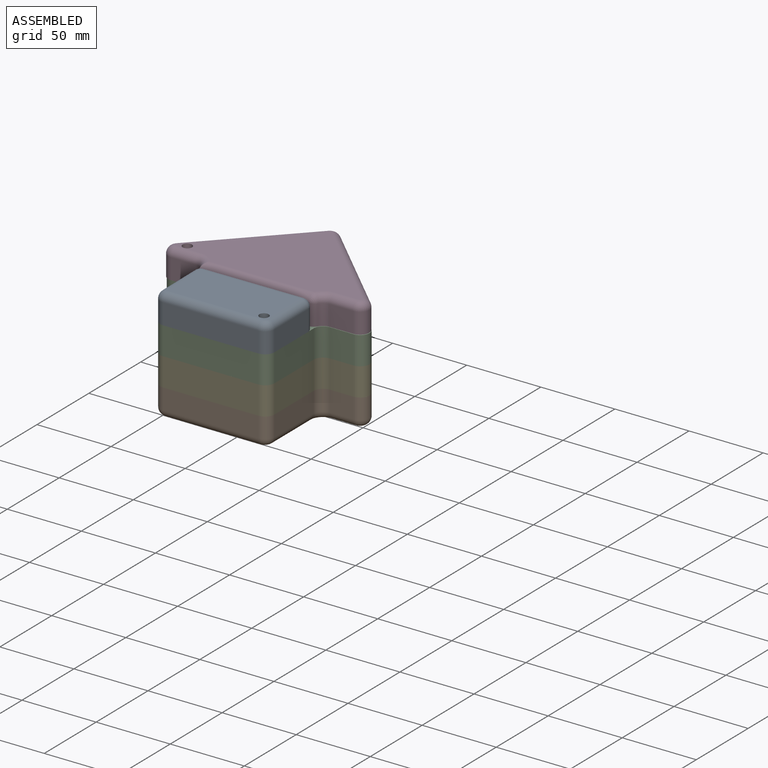
[diagram: assembled view]
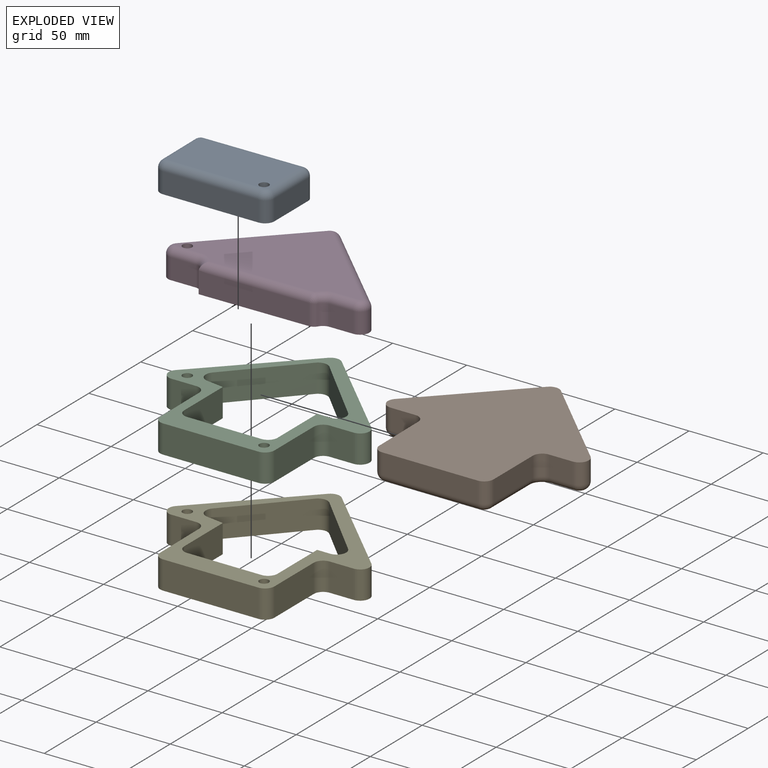
[diagram: exploded view]
GUIDED TOUR — MATED ASSEMBLY (Onshape document b6bfaa9dc01e8448dd5dc00b, AutoMate assembly b6bfaa9dc01e8448dd5dc00b_bda568567a9e28a64f743e2d_8c5addebf70f6e4a13d5cf7d_default)

This assembly has 5 components, labeled P0..P4 below (a component is one placed occurrence of a part; the same part can appear more than once), held together by 4 mates. A mate is a constraint between two components; its type names the relative motion it leaves free:
  FASTENED — locks the two components together rigidly (no relative motion),
  REVOLUTE — leaves rotation about the listed axis free (a hinge).
Axis/direction vectors are unit vectors and 'through' points are millimeter coordinates, both in the assembly's world frame.

MATES
  1. REVOLUTE "Revolute 2": P2 <-> P0, axis (0.000, 0.000, 1.000) through (-102.46, 65.39, 238.02) mm
  2. FASTENED "Fastened 2": P2 <-> P4, direction (0.000, 0.000, -1.000) through (-130.52, 106.85, 218.97) mm
  3. FASTENED "Fastened 1": P4 <-> P1, direction (-1.000, 0.000, 0.000) through (-132.43, 56.81, 199.92) mm
  4. REVOLUTE "Revolute 1": P3 <-> P2, axis (0.000, 0.000, -1.000) through (-189.55, 115.79, 238.02) mm

ASSEMBLY ORDER
  1. P3 — the base component [order verified]
  2. P0 [order verified]
  3. P2 [order verified]
  4. P4 [order verified]
  5. P1 [order verified]
Order-tag legend:
  [order verified] — this step's position reverses a verified removal order: the component was checked to insert without passing through the ones already placed.

Of the 5 components, 3 carry the full construction recipe — the FeatureScript program that regenerates the part's solid from scratch; the rest are supplied as boundary geometry only.
Each toured component is shown spotlighted twice — in the assembled view, then in the exploded view, where a leader line traces a displaced component back to its assembled socket (saturated green if recipe-attached, orange if geometry-only; every other component desaturated gray) — followed by its recipe or geometry summary and the mates that hold it.
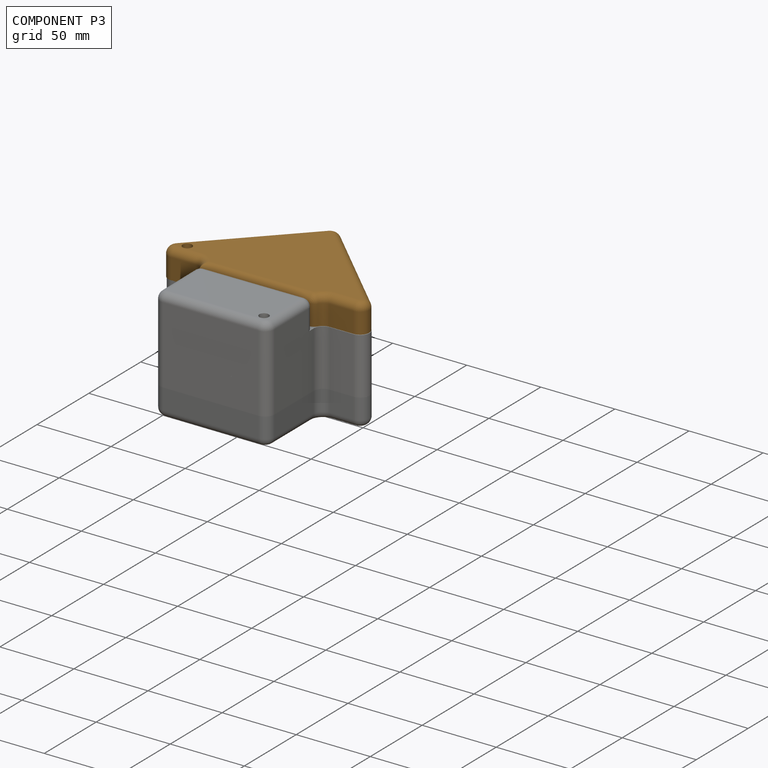
[diagram: component P3 — assembled]
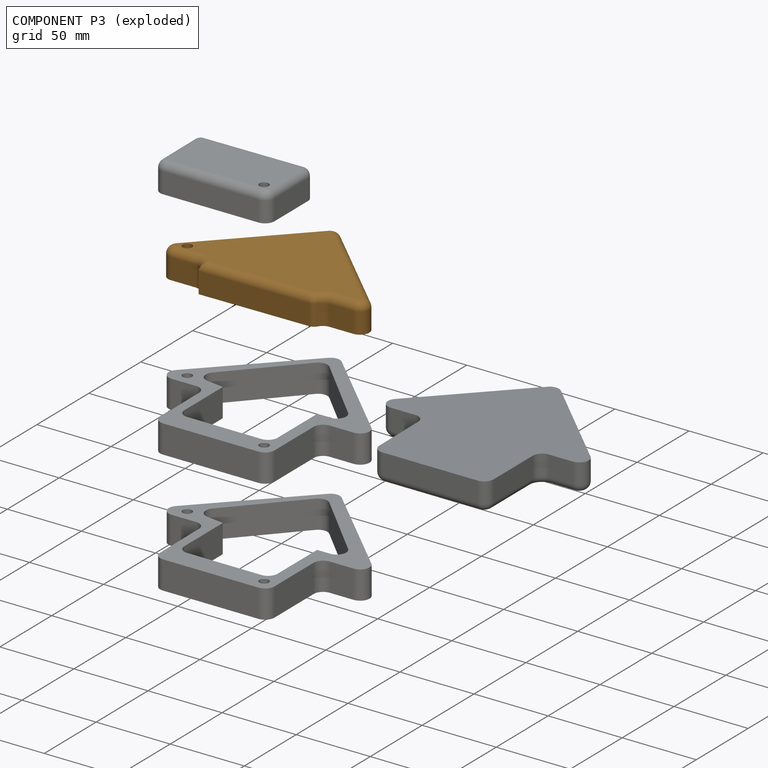
[diagram: component P3 — exploded]
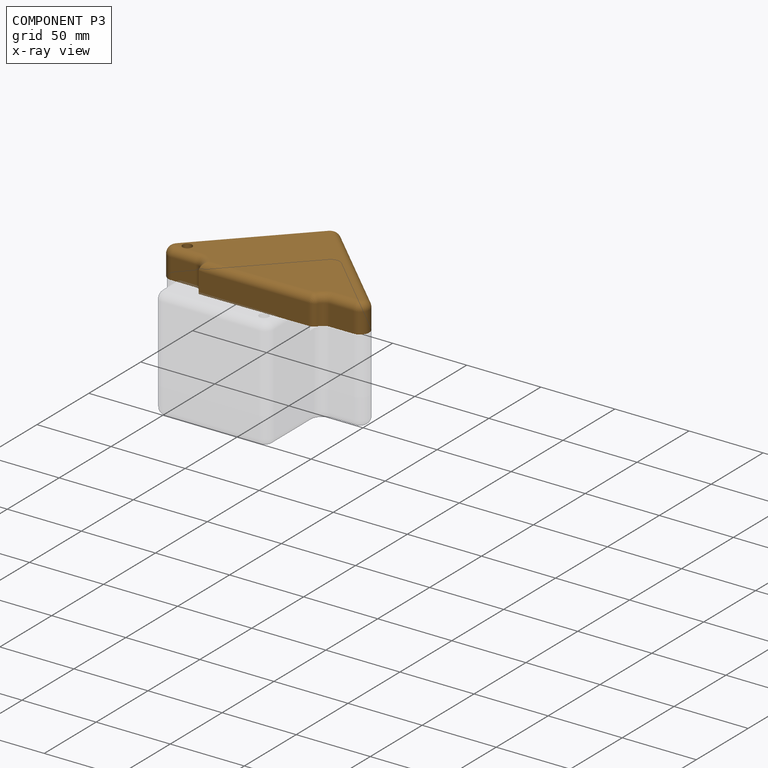
[diagram: component P3 — x-ray view]
COMPONENT P3 — geometry summary (no construction recipe available for this part):
  bounding box: 135.5 x 80.4 x 19.1 mm
  B-rep topology: 1 solid, 28 faces, 133 edges
  volume: 116779 mm^3 (56% of its bounding box)
Held by: REVOLUTE mate "Revolute 1" to P2.
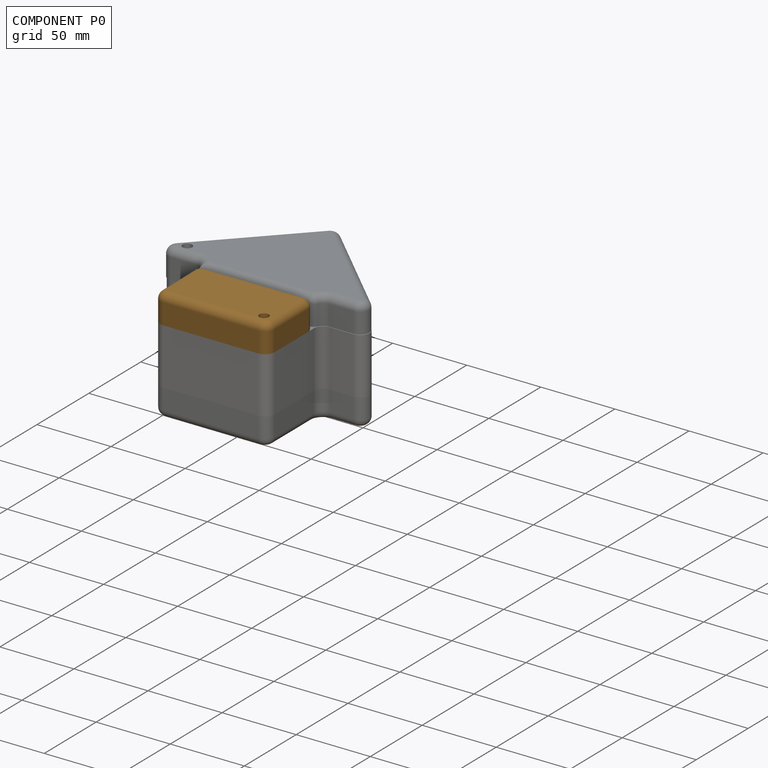
[diagram: component P0 — assembled]
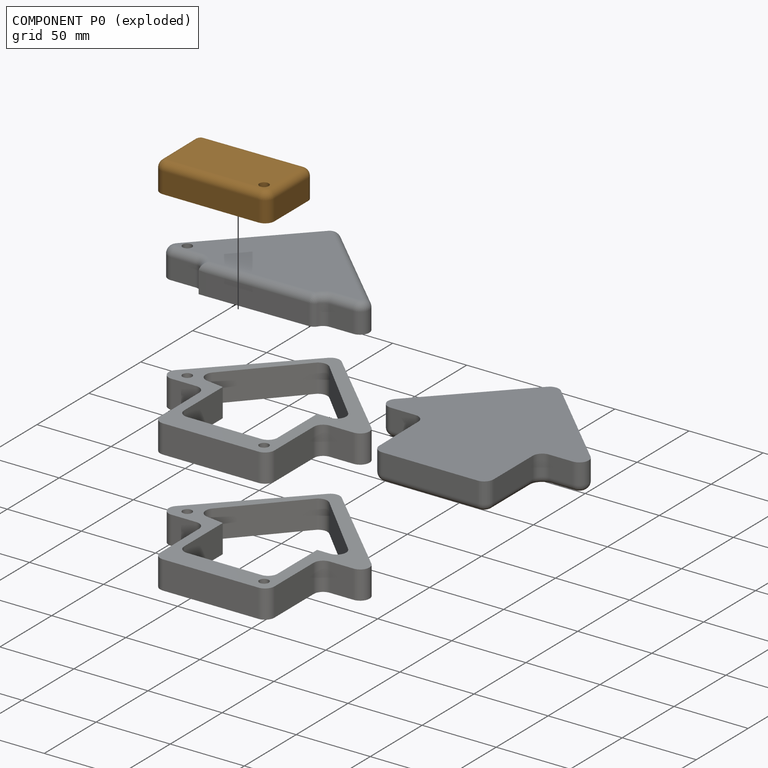
[diagram: component P0 — exploded]
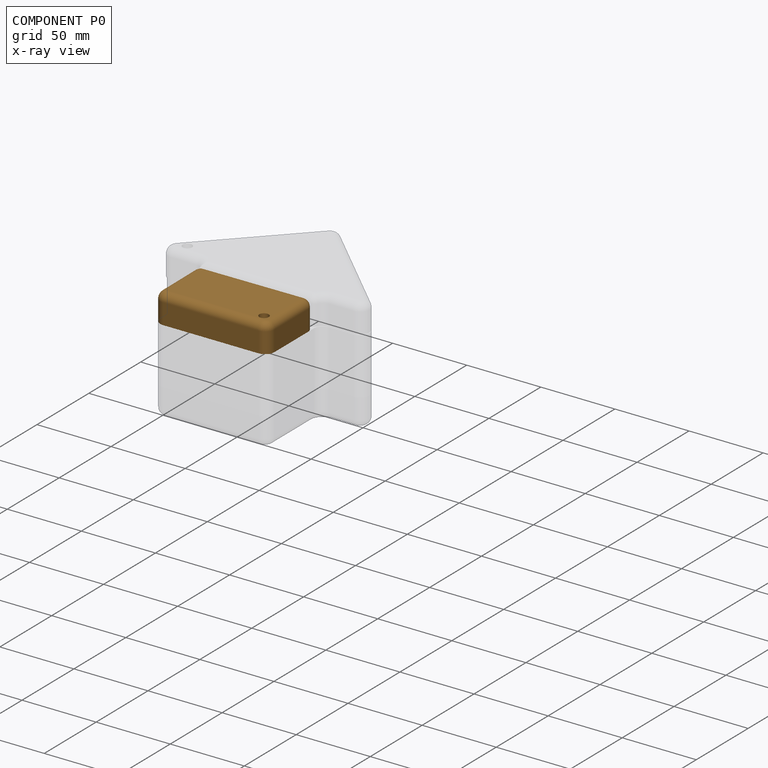
[diagram: component P0 — x-ray view]
COMPONENT P0 — geometry summary (no construction recipe available for this part):
  bounding box: 77.3 x 44.0 x 19.1 mm
  B-rep topology: 1 solid, 19 faces, 84 edges
  volume: 61953 mm^3 (96% of its bounding box)
Held by: REVOLUTE mate "Revolute 2" to P2.
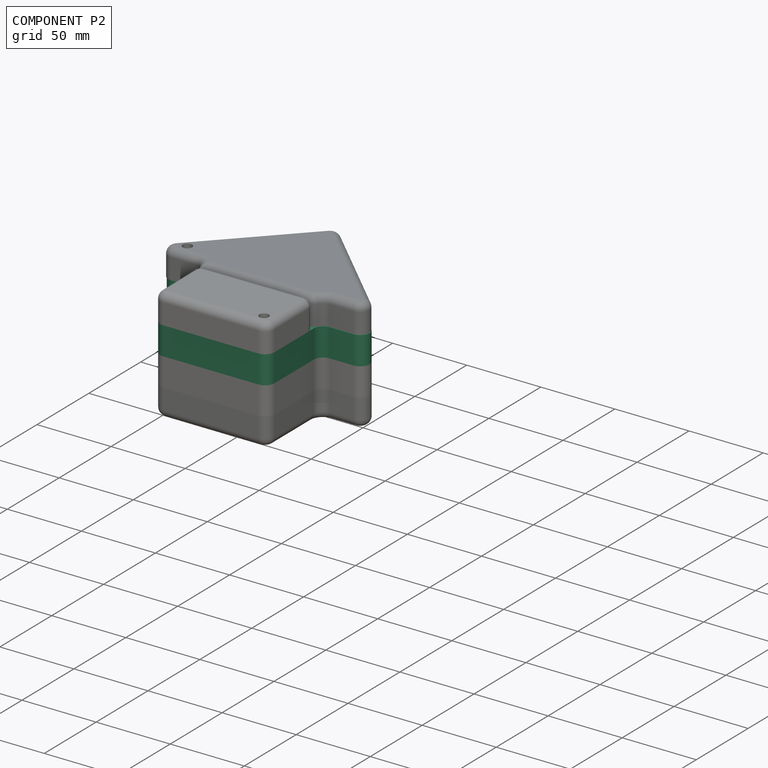
[diagram: component P2 — assembled]
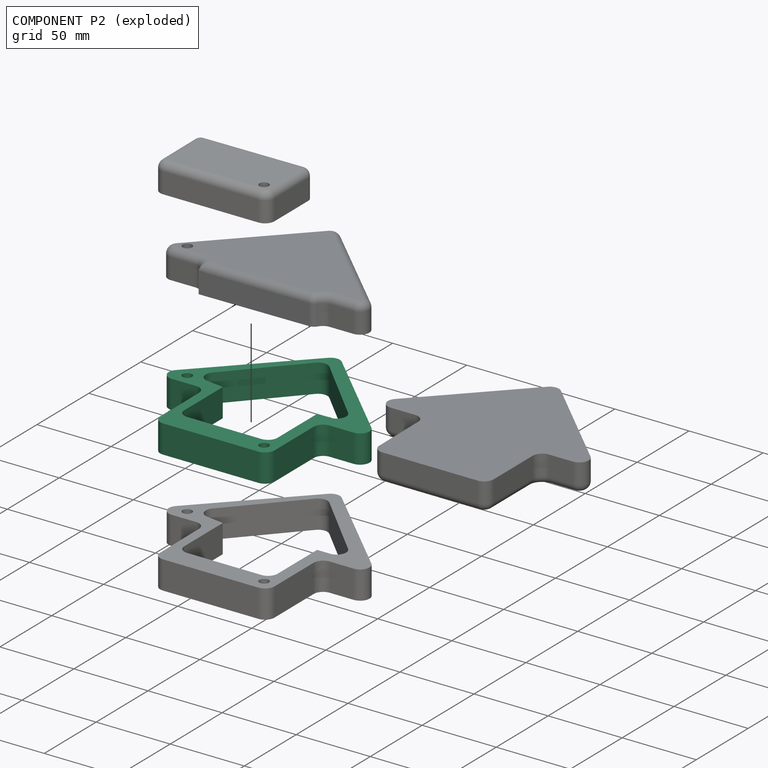
[diagram: component P2 — exploded]
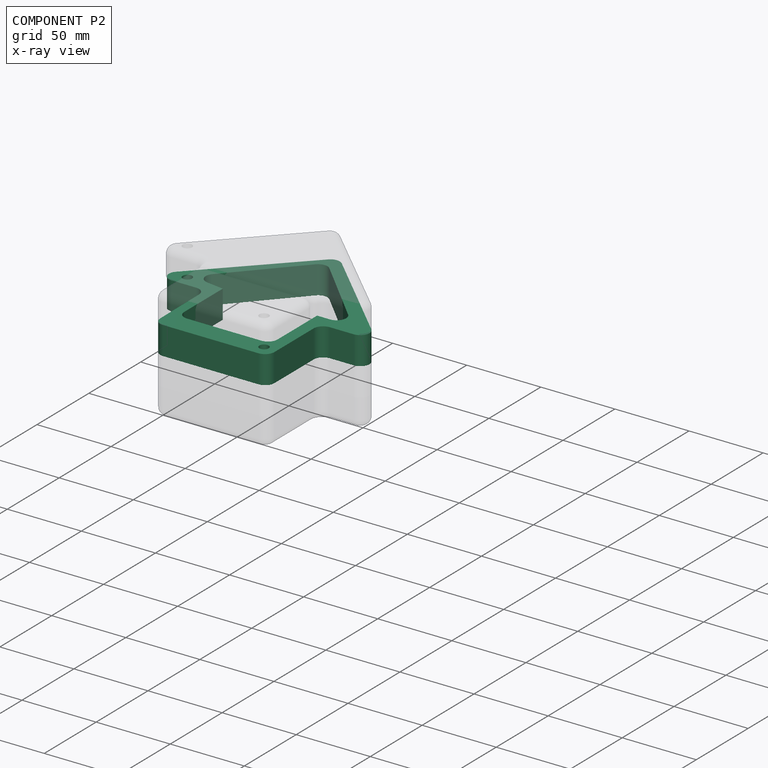
[diagram: component P2 — x-ray view]
COMPONENT P2 — recipe-attached (CADFS 00578790, mesh-verified: the recipe's output STEP matches this component's geometry to below the mesh-comparison resolution (tessellation chordal tolerance ~0.278 mm)).
Held by: REVOLUTE mate "Revolute 2" to P0; FASTENED mate "Fastened 2" to P4; REVOLUTE mate "Revolute 1" to P3.
Construction recipe (FeatureScript — the CAD program that rebuilds this solid; sketch coordinates are in the units given by the * unit suffixes, e.g. mm):

FeatureScript 1540;
import(path : "onshape/std/geometry.fs", version : "1540.0");
import(path : "onshape/std/common.fs", version : "1540.0");
const mm = millimeter;
const VERTEX = EntityType.VERTEX;
const EDGE = EntityType.EDGE;
const FACE = EntityType.FACE;
const BODY = EntityType.BODY;
function v(x, y){return vector(x, y);}
function OD(order){return orderDisambiguation(order);}
function OSD(set){return originalSetDisambiguation(set);}
function TD(topology){return topologyDisambiguation(topology);}
function TDD(query){return trueDependencyDisambiguation(query);}
function sQuery(a, b, c) {return sketchEntityQuery(a, b, c);}

annotation { "Feature Type Name" : "Feature", "Feature Type Description" : "" }
export const myFeature = defineFeature(function(context is Context, id is Id, definition is map)
    precondition{}
    {
        {
            var Q0;
            Q0=qCreatedBy(makeId("Top.planeOp"),FACE);
            var sketch = newSketch(context, id + "F0", { "sketchPlane" : qUnion([Q0])});
            skLineSegment(sketch, "E0", {"start": v(45.33, 2.9) * mm, "end": v(61.46, 2.9) * mm});
            skLineSegment(sketch, "E1", {"start": v(65.89, 13.8) * mm, "end": v(2.82, 75.2) * mm});
            skLineSegment(sketch, "E2", {"start": v(-6.16, 75.09) * mm, "end": v(-65.94, 13.69) * mm});
            skLineSegment(sketch, "E3", {"start": v(-61.39, 2.9) * mm, "end": v(-44.76, 2.9) * mm});
            skLineSegment(sketch, "E4", {"start": v(32.63, -47.63) * mm, "end": v(-31.74, -47.63) * mm});
            skLineSegment(sketch, "E5", {"start": v(-38.1, -41.34) * mm, "end": v(-38.4, -3.39) * mm});
            skLineSegment(sketch, "E6", {"start": v(38.98, -3.44) * mm, "end": v(38.98, -41.28) * mm});
            skPoint(sketch, "E7.visualSharp", {"position": v(77.08, 2.9) * mm});
            skArc(sketch, "E7.filletArc", {"start": v(61.46, 2.9) * mm, "mid": v(67.34, 6.87) * mm, "end": v(65.89, 13.8) * mm});
            skPoint(sketch, "E8.visualSharp", {"position": v(-76.43, 2.9) * mm});
            skArc(sketch, "E8.filletArc", {"start": v(-65.94, 13.69) * mm, "mid": v(-67.24, 6.8) * mm, "end": v(-61.39, 2.9) * mm});
            skPoint(sketch, "E9.visualSharp", {"position": v(-1.73, 79.64) * mm});
            skArc(sketch, "E9.filletArc", {"start": v(2.82, 75.2) * mm, "mid": v(-1.7, 77) * mm, "end": v(-6.16, 75.09) * mm});
            skPoint(sketch, "E10.visualSharp", {"position": v(-38.04, -47.63) * mm});
            skArc(sketch, "E10.filletArc", {"start": v(-38.1, -41.34) * mm, "mid": v(-36.21, -45.8) * mm, "end": v(-31.74, -47.63) * mm});
            skPoint(sketch, "E11.visualSharp", {"position": v(38.98, -47.63) * mm});
            skArc(sketch, "E11.filletArc", {"start": v(32.63, -47.63) * mm, "mid": v(37.12, -45.77) * mm, "end": v(38.98, -41.28) * mm});
            skPoint(sketch, "E12.visualSharp", {"position": v(-38.46, 2.9) * mm});
            skArc(sketch, "E12.filletArc", {"start": v(-38.4, -3.39) * mm, "mid": v(-40.29, 1.07) * mm, "end": v(-44.76, 2.9) * mm});
            skPoint(sketch, "E13.visualSharp", {"position": v(38.98, 2.9) * mm});
            skArc(sketch, "E13.filletArc", {"start": v(45.33, 2.9) * mm, "mid": v(40.84, 1.05) * mm, "end": v(38.98, -3.44) * mm});
            skSolve(sketch);
        }
        {
            var Q0;
            Q0=makeQuery(id+"F0.imprint","IMPRINT",FACE,{"disambiguationData":[TD([[makeQuery(id+"F0.imprint","IMPRINT",EDGE,{"derivedFrom":sQuery(id+"F0.wireOp",EDGE,"E0")}),1.0]])]});
            extrude(context, id + "F1", {"entities" : qUnion([Q0]), "depth" : 19.05 * mm, "offsetDistance" : 25.4 * mm});
        }
        {
            var Q0;
            Q0=makeQuery(id+"F1.opExtrude","CAP_FACE",FACE,{"disambiguationData":[OSD([sQuery(id+"F0.wireOp",EDGE,"E0"),sQuery(id+"F0.wireOp",EDGE,"E1"),sQuery(id+"F0.wireOp",EDGE,"E2"),sQuery(id+"F0.wireOp",EDGE,"E3"),sQuery(id+"F0.wireOp",EDGE,"E4"),sQuery(id+"F0.wireOp",EDGE,"E5"),sQuery(id+"F0.wireOp",EDGE,"E6"),sQuery(id+"F0.wireOp",EDGE,"E7.filletArc"),sQuery(id+"F0.wireOp",EDGE,"E8.filletArc"),sQuery(id+"F0.wireOp",EDGE,"E9.filletArc"),sQuery(id+"F0.wireOp",EDGE,"E10.filletArc"),sQuery(id+"F0.wireOp",EDGE,"E11.filletArc"),sQuery(id+"F0.wireOp",EDGE,"E12.filletArc"),sQuery(id+"F0.wireOp",EDGE,"E13.filletArc")])],"isStart":false});
            var sketch = newSketch(context, id + "F2", { "sketchPlane" : qUnion([Q0])});
            skSolve(sketch);
        }
        {
            var Q0;
            Q0=makeQuery(id+"F2.imprint","IMPRINT",FACE,{"disambiguationData":[TD([[makeQuery(id+"F2.imprint","IMPRINT",EDGE,{"derivedFrom":makeQuery(id+"F1.opExtrude","CAP_EDGE",EDGE,{"disambiguationData":[OSD([sQuery(id+"F0.wireOp",EDGE,"E0")])],"isStart":false})}),1.0]])]});
            var sketch = newSketch(context, id + "F3", { "sketchPlane" : qUnion([Q0])});
            skCircle(sketch, "E14", {"center": v(-56.68, 11.35) * mm, "radius": 3.18 * mm});
            skCircle(sketch, "E15", {"center": v(30.41, -39.06) * mm, "radius": 3.18 * mm});
            skSolve(sketch);
        }
        {
            var Q0;
            Q0 = qSketchRegion(id + "F3", true);
            extrude(context, id + "F4", {"entities" : qUnion([Q0]), "operationType" : NewBodyOperationType.REMOVE, "endBound" : BoundingType.THROUGH_ALL, "oppositeDirection" : true, "depth" : 25.4 * mm, "offsetDistance" : 25.4 * mm});
        }
        {
            var Q0;
            Q0=makeQuery(id+"F2.imprint","IMPRINT",FACE,{"disambiguationData":[TD([[makeQuery(id+"F2.imprint","IMPRINT",EDGE,{"derivedFrom":makeQuery(id+"F1.opExtrude","CAP_EDGE",EDGE,{"disambiguationData":[OSD([sQuery(id+"F0.wireOp",EDGE,"E0")])],"isStart":false})}),1.0]])]});
            var sketch = newSketch(context, id + "F5", { "sketchPlane" : qUnion([Q0])});
            skLineSegment(sketch, "E16", {"start": v(-47.5, 22.64) * mm, "end": v(-8.29, 65.8) * mm});
            skLineSegment(sketch, "E17", {"start": v(0.93, 66) * mm, "end": v(44.22, 22.25) * mm});
            skLineSegment(sketch, "E18", {"start": v(39.7, 11.44) * mm, "end": v(30.88, 11.44) * mm});
            skLineSegment(sketch, "E19", {"start": v(30.88, 11.44) * mm, "end": v(30.88, -26.76) * mm});
            skLineSegment(sketch, "E20", {"start": v(24.53, -33.1) * mm, "end": v(-25.65, -33.1) * mm});
            skLineSegment(sketch, "E21", {"start": v(-32, -26.76) * mm, "end": v(-32, 10.29) * mm});
            skLineSegment(sketch, "E22", {"start": v(-32, 10.29) * mm, "end": v(-43.76, 12.1) * mm});
            skPoint(sketch, "E23.visualSharp", {"position": v(-3.78, 70.76) * mm});
            skArc(sketch, "E23.filletArc", {"start": v(0.93, 66) * mm, "mid": v(-3.72, 67.88) * mm, "end": v(-8.29, 65.8) * mm});
            skPoint(sketch, "E24.visualSharp", {"position": v(-55.44, 13.9) * mm});
            skArc(sketch, "E24.filletArc", {"start": v(-47.5, 22.64) * mm, "mid": v(-48.78, 16.25) * mm, "end": v(-43.76, 12.1) * mm});
            skPoint(sketch, "E25.visualSharp", {"position": v(-32, -33.1) * mm});
            skArc(sketch, "E25.filletArc", {"start": v(-32, -26.76) * mm, "mid": v(-30.14, -31.25) * mm, "end": v(-25.65, -33.1) * mm});
            skPoint(sketch, "E26.visualSharp", {"position": v(30.88, -33.1) * mm});
            skArc(sketch, "E26.filletArc", {"start": v(24.53, -33.1) * mm, "mid": v(29.02, -31.25) * mm, "end": v(30.88, -26.76) * mm});
            skPoint(sketch, "E27.visualSharp", {"position": v(54.93, 11.44) * mm});
            skArc(sketch, "E27.filletArc", {"start": v(39.7, 11.44) * mm, "mid": v(45.57, 15.34) * mm, "end": v(44.22, 22.25) * mm});
            skSolve(sketch);
        }
        {
            var Q0;
            Q0 = qSketchRegion(id + "F5", true);
            extrude(context, id + "F6", {"entities" : qUnion([Q0]), "operationType" : NewBodyOperationType.REMOVE, "endBound" : BoundingType.THROUGH_ALL, "oppositeDirection" : true, "depth" : 25.4 * mm, "offsetDistance" : 25.4 * mm});
        }
    });
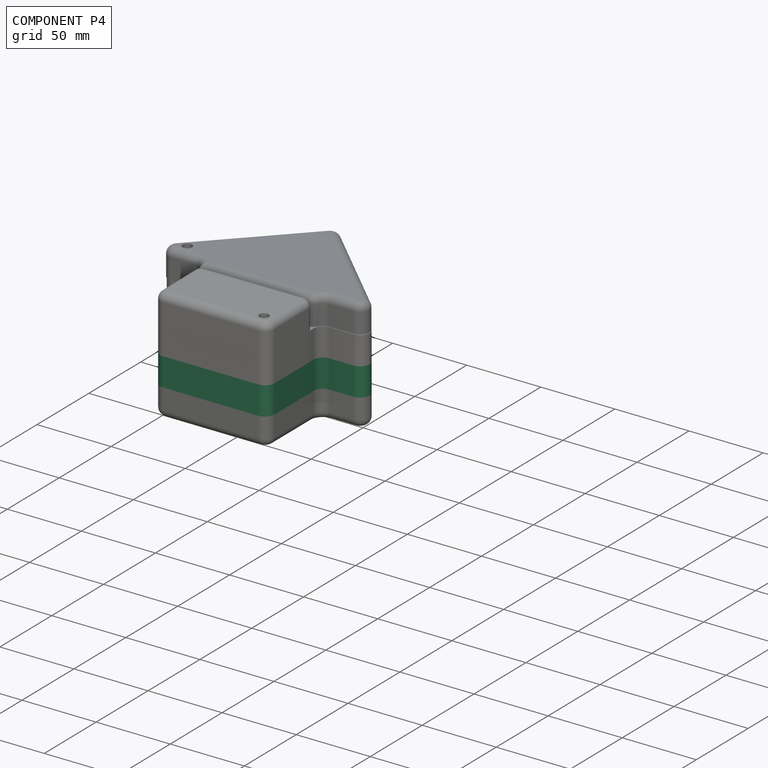
[diagram: component P4 — assembled]
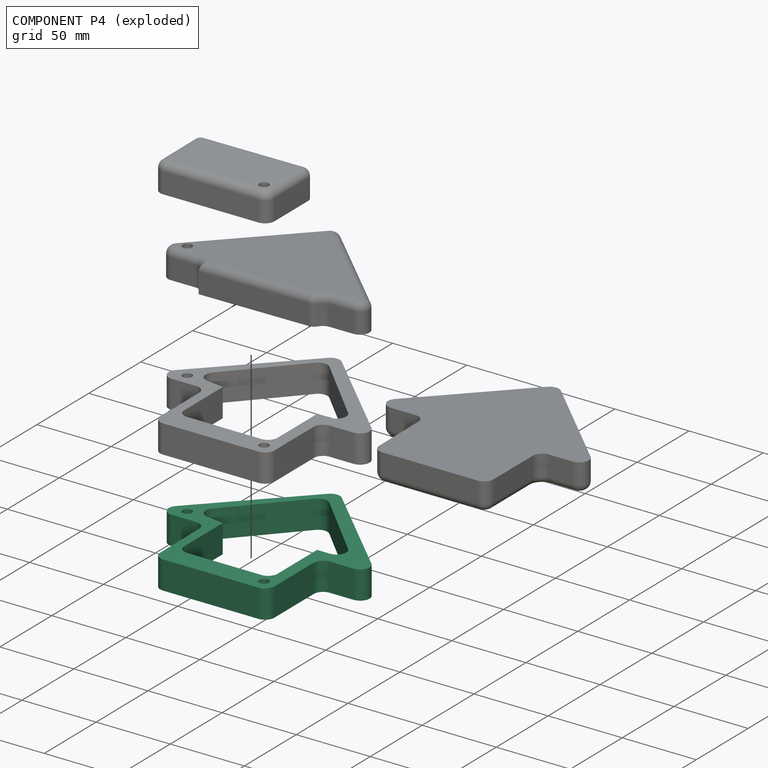
[diagram: component P4 — exploded]
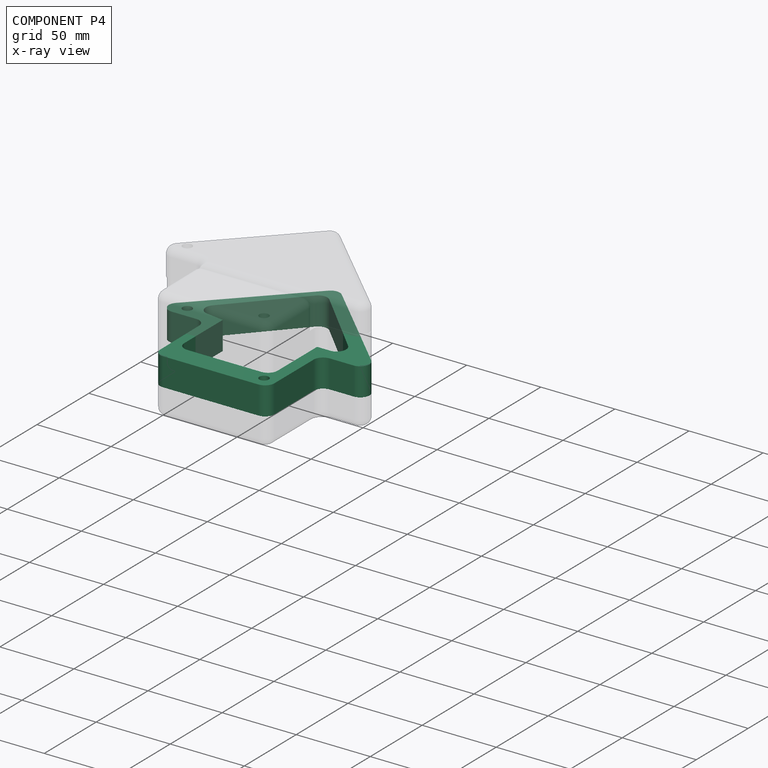
[diagram: component P4 — x-ray view]
COMPONENT P4 — same part as P2 (CADFS 00578790); its construction recipe is shown at P2.
Held by: FASTENED mate "Fastened 2" to P2; FASTENED mate "Fastened 1" to P1.
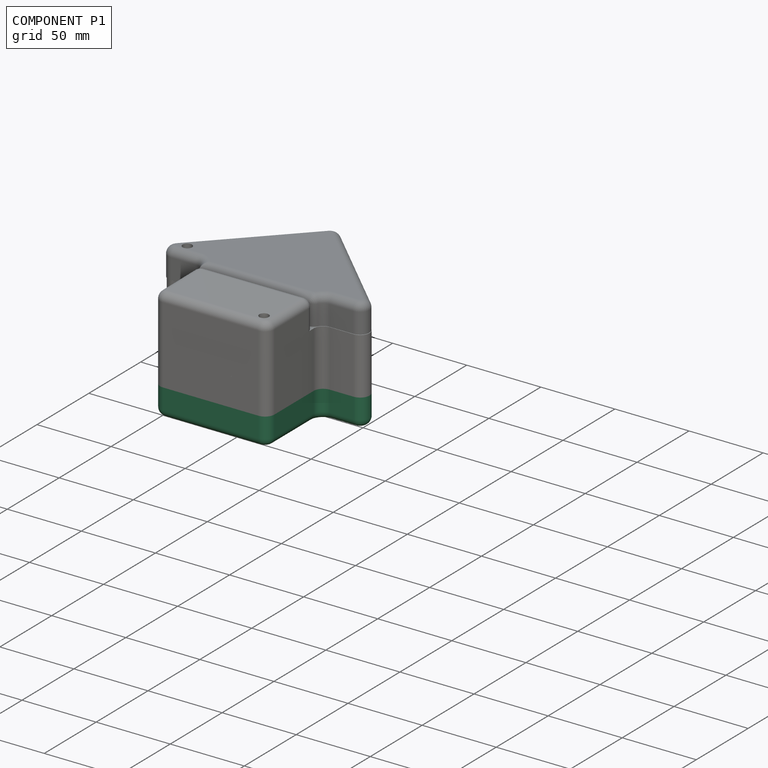
[diagram: component P1 — assembled]
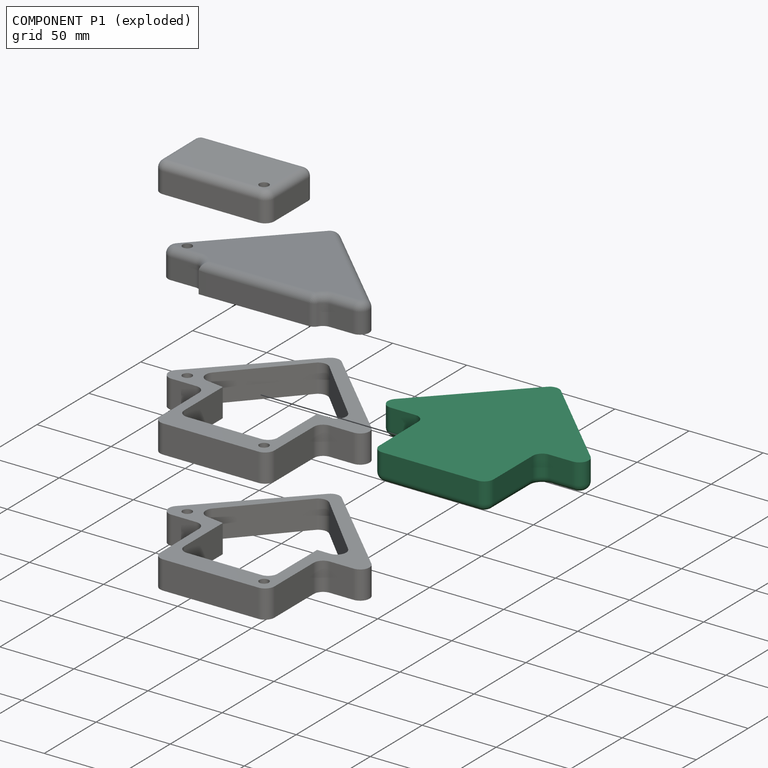
[diagram: component P1 — exploded]
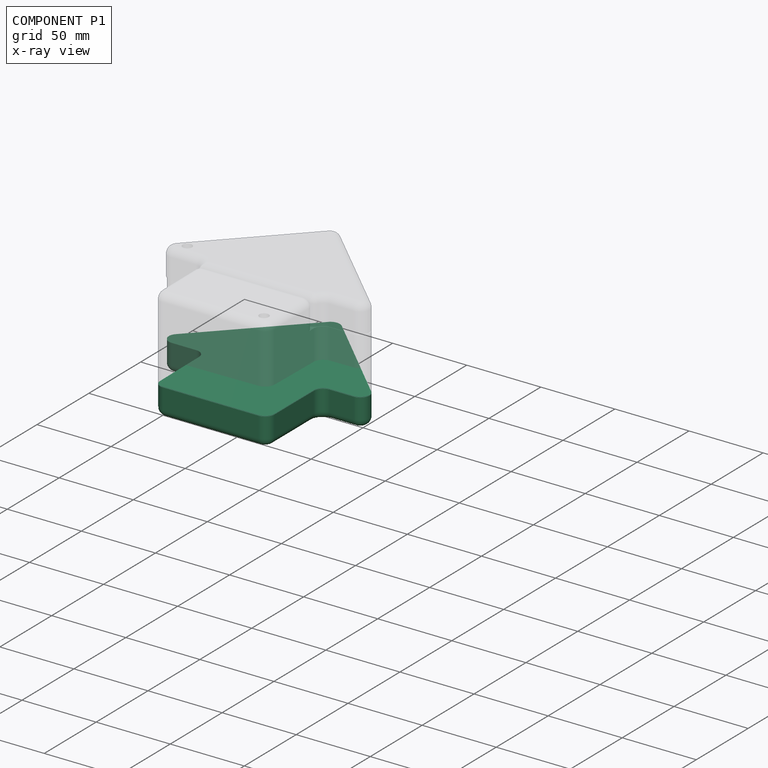
[diagram: component P1 — x-ray view]
COMPONENT P1 — recipe-attached (CADFS 00578788, mesh-verified: the recipe's output STEP matches this component's geometry to below the mesh-comparison resolution (tessellation chordal tolerance ~0.278 mm)).
Held by: FASTENED mate "Fastened 1" to P4.
Construction recipe (FeatureScript — the CAD program that rebuilds this solid; sketch coordinates are in the units given by the * unit suffixes, e.g. mm):

FeatureScript 1540;
import(path : "onshape/std/geometry.fs", version : "1540.0");
import(path : "onshape/std/common.fs", version : "1540.0");
const mm = millimeter;
const VERTEX = EntityType.VERTEX;
const EDGE = EntityType.EDGE;
const FACE = EntityType.FACE;
const BODY = EntityType.BODY;
function v(x, y){return vector(x, y);}
function OD(order){return orderDisambiguation(order);}
function OSD(set){return originalSetDisambiguation(set);}
function TD(topology){return topologyDisambiguation(topology);}
function TDD(query){return trueDependencyDisambiguation(query);}
function sQuery(a, b, c) {return sketchEntityQuery(a, b, c);}

annotation { "Feature Type Name" : "Feature", "Feature Type Description" : "" }
export const myFeature = defineFeature(function(context is Context, id is Id, definition is map)
    precondition{}
    {
        {
            var Q0;
            Q0=qCreatedBy(makeId("Top.planeOp"),FACE);
            var sketch = newSketch(context, id + "F0", { "sketchPlane" : qUnion([Q0])});
            skLineSegment(sketch, "E0", {"start": v(45.33, 2.9) * mm, "end": v(61.46, 2.9) * mm});
            skLineSegment(sketch, "E1", {"start": v(65.89, 13.8) * mm, "end": v(2.82, 75.2) * mm});
            skLineSegment(sketch, "E2", {"start": v(-6.16, 75.09) * mm, "end": v(-65.94, 13.69) * mm});
            skLineSegment(sketch, "E3", {"start": v(-61.39, 2.9) * mm, "end": v(-44.76, 2.9) * mm});
            skLineSegment(sketch, "E4", {"start": v(32.63, -47.63) * mm, "end": v(-31.74, -47.63) * mm});
            skLineSegment(sketch, "E5", {"start": v(-38.1, -41.34) * mm, "end": v(-38.4, -3.39) * mm});
            skLineSegment(sketch, "E6", {"start": v(38.98, -3.44) * mm, "end": v(38.98, -41.28) * mm});
            skPoint(sketch, "E7.visualSharp", {"position": v(77.08, 2.9) * mm});
            skArc(sketch, "E7.filletArc", {"start": v(61.46, 2.9) * mm, "mid": v(67.34, 6.87) * mm, "end": v(65.89, 13.8) * mm});
            skPoint(sketch, "E8.visualSharp", {"position": v(-76.43, 2.9) * mm});
            skArc(sketch, "E8.filletArc", {"start": v(-65.94, 13.69) * mm, "mid": v(-67.24, 6.8) * mm, "end": v(-61.39, 2.9) * mm});
            skPoint(sketch, "E9.visualSharp", {"position": v(-1.73, 79.64) * mm});
            skArc(sketch, "E9.filletArc", {"start": v(2.82, 75.2) * mm, "mid": v(-1.7, 77) * mm, "end": v(-6.16, 75.09) * mm});
            skPoint(sketch, "E10.visualSharp", {"position": v(-38.04, -47.63) * mm});
            skArc(sketch, "E10.filletArc", {"start": v(-38.1, -41.34) * mm, "mid": v(-36.21, -45.8) * mm, "end": v(-31.74, -47.63) * mm});
            skPoint(sketch, "E11.visualSharp", {"position": v(38.98, -47.63) * mm});
            skArc(sketch, "E11.filletArc", {"start": v(32.63, -47.63) * mm, "mid": v(37.12, -45.77) * mm, "end": v(38.98, -41.28) * mm});
            skPoint(sketch, "E12.visualSharp", {"position": v(-38.46, 2.9) * mm});
            skArc(sketch, "E12.filletArc", {"start": v(-38.4, -3.39) * mm, "mid": v(-40.29, 1.07) * mm, "end": v(-44.76, 2.9) * mm});
            skPoint(sketch, "E13.visualSharp", {"position": v(38.98, 2.9) * mm});
            skArc(sketch, "E13.filletArc", {"start": v(45.33, 2.9) * mm, "mid": v(40.84, 1.05) * mm, "end": v(38.98, -3.44) * mm});
            skSolve(sketch);
        }
        {
            var Q0;
            Q0=makeQuery(id+"F0.imprint","IMPRINT",FACE,{"disambiguationData":[TD([[makeQuery(id+"F0.imprint","IMPRINT",EDGE,{"derivedFrom":sQuery(id+"F0.wireOp",EDGE,"E0")}),1.0]])]});
            extrude(context, id + "F1", {"entities" : qUnion([Q0]), "depth" : 19.05 * mm, "offsetDistance" : 25.4 * mm});
        }
        {
            var Q0;
            Q0=makeQuery(id+"F1.opExtrude","CAP_FACE",FACE,{"disambiguationData":[OSD([sQuery(id+"F0.wireOp",EDGE,"E0"),sQuery(id+"F0.wireOp",EDGE,"E1"),sQuery(id+"F0.wireOp",EDGE,"E2"),sQuery(id+"F0.wireOp",EDGE,"E3"),sQuery(id+"F0.wireOp",EDGE,"E4"),sQuery(id+"F0.wireOp",EDGE,"E5"),sQuery(id+"F0.wireOp",EDGE,"E6"),sQuery(id+"F0.wireOp",EDGE,"E7.filletArc"),sQuery(id+"F0.wireOp",EDGE,"E8.filletArc"),sQuery(id+"F0.wireOp",EDGE,"E9.filletArc"),sQuery(id+"F0.wireOp",EDGE,"E10.filletArc"),sQuery(id+"F0.wireOp",EDGE,"E11.filletArc"),sQuery(id+"F0.wireOp",EDGE,"E12.filletArc"),sQuery(id+"F0.wireOp",EDGE,"E13.filletArc")])],"isStart":true});
            fillet(context, id + "F2", {"entities" : qUnion([Q0]), "radius" : 5.08 * mm, "tangentPropagation" : true, "allowEdgeOverflow" : false});
        }
    });
PROVENANCE & LICENSES
Assembly (occurrences, transforms, mates, per-part STEP geometry): AutoMate dataset, Zenodo record 7776208, CC0.
Construction recipes: CADFS (HuggingFace VladPyatov/CADFS, CC-BY-4.0, layered over the ABC dataset), FeatureScript reconstruction programs keyed by ABC model id.
Join: ABC meta listings map ABC model id -> Onshape documentId; within a shared document, parts are matched by geometric signature (bounding-box dims + volume at 0.1% relative tolerance, exact B-rep face/solid counts).
Verification: 3 of this assembly's 5 components carry a recipe attachment, and every attachment is mesh-verified: the CADFS STEP and the AutoMate member STEP were compared as meshes in their shared local frame (symmetric sampled-point-to-mesh distance); worst across the 3 attachments: below the mesh-comparison resolution (tessellation chordal tolerance ~0.278 mm) on a 185 mm part.
Renders: orthographic iso camera (az 35 / el 25); the floor grid conveys scale (grid pitch printed in each image; no ruler). In the exploded view each component is displaced by its stored offset vector: the offsets alone carry the explosion direction (mate normal/axis signs are not orientation cues and do not encode it), and separation distances are assigned per mate-chain, not proportionally to assembly-order depth.
